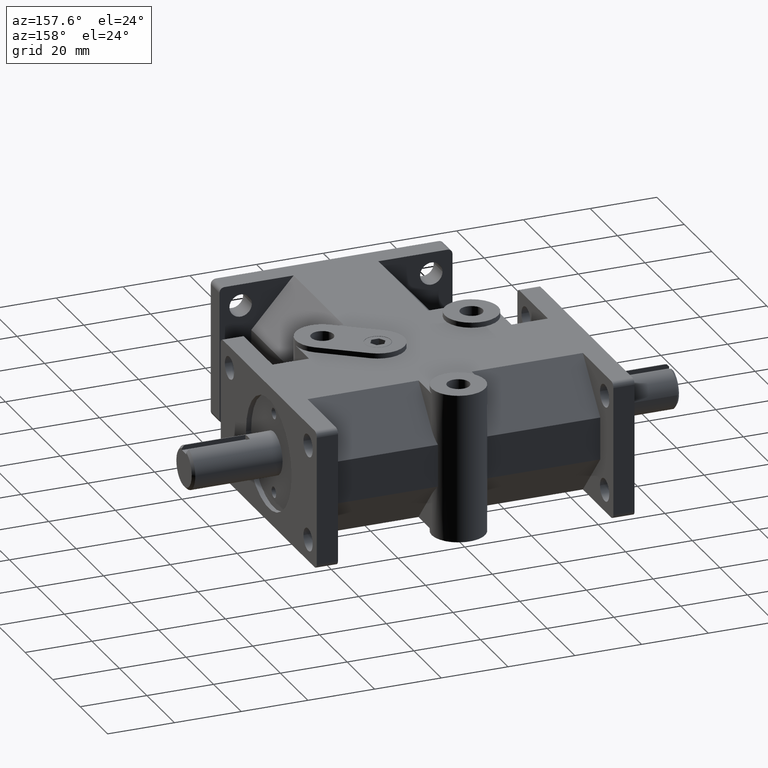
[diagram: clean part render]
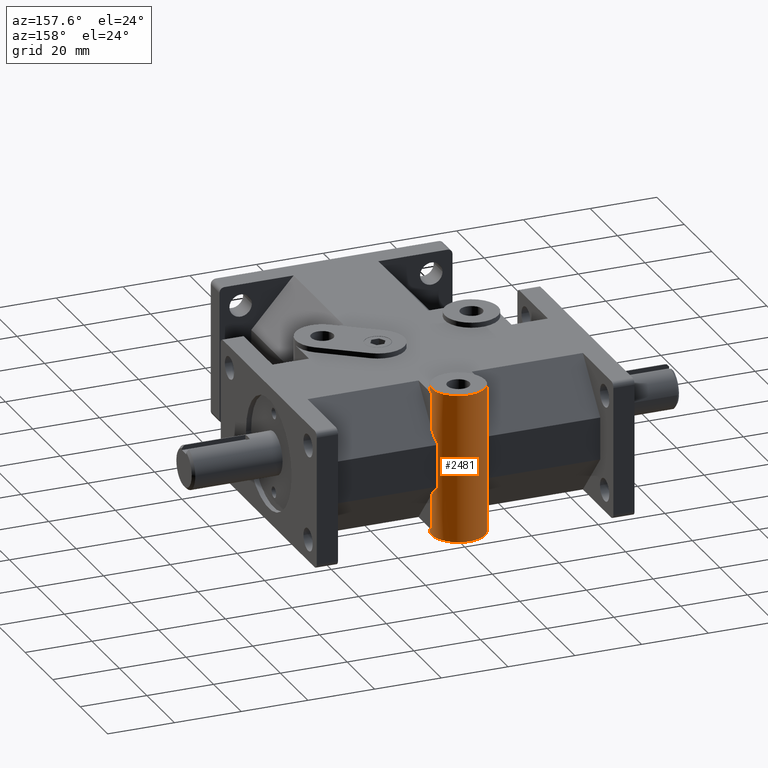
[diagram: same view with one face highlighted and labeled with its STEP entity id]
A machine part, auxiliary view. The second image highlights one B-rep face of the part: STEP entity #2481.
In plain terms, the highlighted cylindrical surface (bore or boss wall) has radius 8.001 mm, axis along (0, 0, 1).
Its self-contained STEP definition (entity closure, byte-faithful):
#103=CYLINDRICAL_SURFACE('',#2734,0.315);
#113=CIRCLE('',#2529,0.315);
#121=CIRCLE('',#2543,0.315);
#205=CIRCLE('',#2735,0.315);
#206=CIRCLE('',#2736,0.315);
#323=FACE_OUTER_BOUND('',#496,.T.);
#496=EDGE_LOOP('',(#2141,#2142,#2143,#2144,#2145,#2146,#2147,#2148,#2149,
#2150,#2151,#2152,#2153,#2154,#2155,#2156,#2157,#2158));
#536=ELLIPSE('',#2545,0.475316107974472,0.315);
#537=ELLIPSE('',#2548,0.475316107974472,0.315);
#539=ELLIPSE('',#2552,0.475316107974472,0.315);
#540=ELLIPSE('',#2554,0.475316107974472,0.315);
#617=LINE('',#3688,#845);
#629=LINE('',#3719,#857);
#742=LINE('',#4148,#970);
#743=LINE('',#4149,#971);
#744=LINE('',#4150,#972);
#745=LINE('',#4152,#973);
#746=LINE('',#4154,#974);
#747=LINE('',#4155,#975);
#845=VECTOR('',#2895,1.);
#857=VECTOR('',#2925,1.);
#970=VECTOR('',#3398,0.315);
#971=VECTOR('',#3399,1.);
#972=VECTOR('',#3400,1.);
#973=VECTOR('',#3401,0.315);
#974=VECTOR('',#3404,1.);
#975=VECTOR('',#3405,1.);
#1013=VERTEX_POINT('',#3542);
#1014=VERTEX_POINT('',#3544);
#1068=VERTEX_POINT('',#3660);
#1069=VERTEX_POINT('',#3662);
#1075=VERTEX_POINT('',#3676);
#1076=VERTEX_POINT('',#3677);
#1079=VERTEX_POINT('',#3686);
#1080=VERTEX_POINT('',#3690);
#1084=VERTEX_POINT('',#3703);
#1085=VERTEX_POINT('',#3704);
#1087=VERTEX_POINT('',#3711);
#1088=VERTEX_POINT('',#3712);
#1213=VERTEX_POINT('',#4146);
#1214=VERTEX_POINT('',#4151);
#1247=EDGE_CURVE('',#1013,#1014,#113,.T.);
#1306=EDGE_CURVE('',#1068,#1069,#121,.T.);
#1313=EDGE_CURVE('',#1075,#1076,#536,.T.);
#1319=EDGE_CURVE('',#1079,#1075,#617,.T.);
#1320=EDGE_CURVE('',#1080,#1079,#537,.T.);
#1327=EDGE_CURVE('',#1084,#1085,#539,.T.);
#1331=EDGE_CURVE('',#1087,#1088,#540,.T.);
#1335=EDGE_CURVE('',#1084,#1088,#629,.T.);
#1539=EDGE_CURVE('',#1213,#1213,#205,.T.);
#1540=EDGE_CURVE('',#1213,#1014,#742,.T.);
#1541=EDGE_CURVE('',#1076,#1013,#743,.T.);
#1542=EDGE_CURVE('',#1069,#1080,#744,.T.);
#1543=EDGE_CURVE('',#1068,#1214,#745,.T.);
#1544=EDGE_CURVE('',#1214,#1214,#206,.T.);
#1545=EDGE_CURVE('',#1068,#1087,#746,.T.);
#1546=EDGE_CURVE('',#1085,#1014,#747,.T.);
#2141=ORIENTED_EDGE('',*,*,#1539,.T.);
#2142=ORIENTED_EDGE('',*,*,#1540,.T.);
#2143=ORIENTED_EDGE('',*,*,#1247,.F.);
#2144=ORIENTED_EDGE('',*,*,#1541,.F.);
#2145=ORIENTED_EDGE('',*,*,#1313,.F.);
#2146=ORIENTED_EDGE('',*,*,#1319,.F.);
#2147=ORIENTED_EDGE('',*,*,#1320,.F.);
#2148=ORIENTED_EDGE('',*,*,#1542,.F.);
#2149=ORIENTED_EDGE('',*,*,#1306,.F.);
#2150=ORIENTED_EDGE('',*,*,#1543,.T.);
#2151=ORIENTED_EDGE('',*,*,#1544,.T.);
#2152=ORIENTED_EDGE('',*,*,#1543,.F.);
#2153=ORIENTED_EDGE('',*,*,#1545,.T.);
#2154=ORIENTED_EDGE('',*,*,#1331,.T.);
#2155=ORIENTED_EDGE('',*,*,#1335,.F.);
#2156=ORIENTED_EDGE('',*,*,#1327,.T.);
#2157=ORIENTED_EDGE('',*,*,#1546,.T.);
#2158=ORIENTED_EDGE('',*,*,#1540,.F.);
#2481=ADVANCED_FACE('',(#323),#103,.T.);
#2529=AXIS2_PLACEMENT_3D('',#3545,#2799,#2800);
#2543=AXIS2_PLACEMENT_3D('',#3663,#2876,#2877);
#2545=AXIS2_PLACEMENT_3D('',#3678,#2886,#2887);
#2548=AXIS2_PLACEMENT_3D('',#3691,#2898,#2899);
#2552=AXIS2_PLACEMENT_3D('',#3705,#2911,#2912);
#2554=AXIS2_PLACEMENT_3D('',#3713,#2918,#2919);
#2734=AXIS2_PLACEMENT_3D('',#4145,#3394,#3395);
#2735=AXIS2_PLACEMENT_3D('',#4147,#3396,#3397);
#2736=AXIS2_PLACEMENT_3D('',#4153,#3402,#3403);
#2799=DIRECTION('center_axis',(0.,0.,-1.));
#2800=DIRECTION('ref_axis',(1.,0.,0.));
#2876=DIRECTION('center_axis',(0.,0.,1.));
#2877=DIRECTION('ref_axis',(1.,0.,0.));
#2886=DIRECTION('center_axis',(0.,-0.748870055165724,-0.662716862978517));
#2887=DIRECTION('ref_axis',(0.,0.662716862978517,-0.748870055165724));
#2895=DIRECTION('',(0.,0.,1.));
#2898=DIRECTION('center_axis',(0.,-0.748870055165724,0.662716862978517));
#2899=DIRECTION('ref_axis',(0.,0.662716862978517,0.748870055165724));
#2911=DIRECTION('center_axis',(0.,0.748870055165724,0.662716862978517));
#2912=DIRECTION('ref_axis',(0.,0.662716862978517,-0.748870055165724));
#2918=DIRECTION('center_axis',(0.,0.748870055165724,-0.662716862978517));
#2919=DIRECTION('ref_axis',(0.,0.662716862978517,0.748870055165724));
#2925=DIRECTION('',(0.,0.,-1.));
#3394=DIRECTION('center_axis',(0.,0.,1.));
#3395=DIRECTION('ref_axis',(1.,0.,0.));
#3396=DIRECTION('center_axis',(0.,0.,-1.));
#3397=DIRECTION('ref_axis',(1.,0.,0.));
#3398=DIRECTION('',(0.,0.,-1.));
#3399=DIRECTION('',(0.,0.,1.));
#3400=DIRECTION('',(0.,0.,1.));
#3401=DIRECTION('',(0.,0.,-1.));
#3402=DIRECTION('center_axis',(0.,0.,1.));
#3403=DIRECTION('ref_axis',(1.,0.,0.));
#3404=DIRECTION('',(0.,0.,1.));
#3405=DIRECTION('',(0.,0.,1.));
#3542=CARTESIAN_POINT('',(0.315,3.755,0.815));
#3544=CARTESIAN_POINT('',(-0.315,3.755,0.815));
#3545=CARTESIAN_POINT('Origin',(-2.22044604925031E-16,3.755,0.815));
#3660=CARTESIAN_POINT('',(-0.315,3.755,-0.815));
#3662=CARTESIAN_POINT('',(0.315,3.755,-0.815));
#3663=CARTESIAN_POINT('Origin',(-2.22044604925031E-16,3.755,-0.815));
#3676=CARTESIAN_POINT('',(0.291247317584214,3.875,0.25));
#3677=CARTESIAN_POINT('',(0.315,3.755,0.3856));
#3678=CARTESIAN_POINT('Origin',(2.22044604925031E-16,3.755,0.3856));
#3686=CARTESIAN_POINT('',(0.291247317584214,3.875,-0.25));
#3688=CARTESIAN_POINT('',(0.291247317584214,3.875,0.));
#3690=CARTESIAN_POINT('',(0.315,3.755,-0.385600000000001));
#3691=CARTESIAN_POINT('Origin',(2.22044604925031E-16,3.755,-0.3856));
#3703=CARTESIAN_POINT('',(-0.291247317584214,3.875,0.25));
#3704=CARTESIAN_POINT('',(-0.315,3.755,0.3856));
#3705=CARTESIAN_POINT('Origin',(-2.22044604925031E-16,3.755,0.3856));
#3711=CARTESIAN_POINT('',(-0.315,3.755,-0.385600000000001));
#3712=CARTESIAN_POINT('',(-0.291247317584214,3.875,-0.25));
#3713=CARTESIAN_POINT('Origin',(-2.22044604925031E-16,3.755,-0.3856));
#3719=CARTESIAN_POINT('',(-0.291247317584214,3.875,0.));
#4145=CARTESIAN_POINT('Origin',(-2.22044604925031E-16,3.755,0.));
#4146=CARTESIAN_POINT('',(-0.315,3.755,0.875));
#4147=CARTESIAN_POINT('Origin',(-2.22044604925031E-16,3.755,0.875));
#4148=CARTESIAN_POINT('',(-0.315,3.755,0.));
#4149=CARTESIAN_POINT('',(0.315,3.755,0.));
#4150=CARTESIAN_POINT('',(0.315,3.755,0.));
#4151=CARTESIAN_POINT('',(-0.315,3.755,-0.875));
#4152=CARTESIAN_POINT('',(-0.315,3.755,0.));
#4153=CARTESIAN_POINT('Origin',(-2.22044604925031E-16,3.755,-0.875));
#4154=CARTESIAN_POINT('',(-0.315,3.755,0.));
#4155=CARTESIAN_POINT('',(-0.315,3.755,0.));